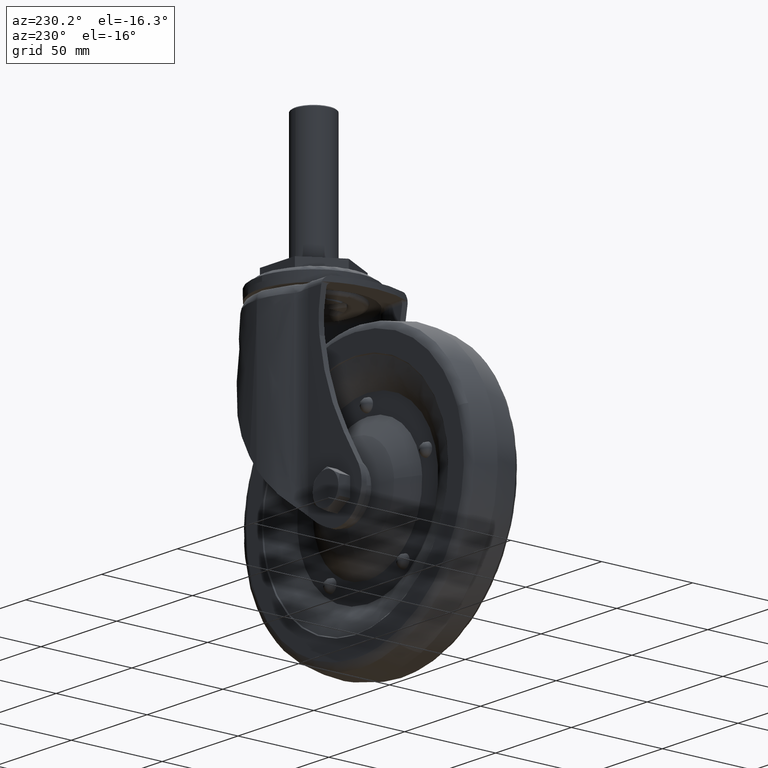
[diagram: clean part render]
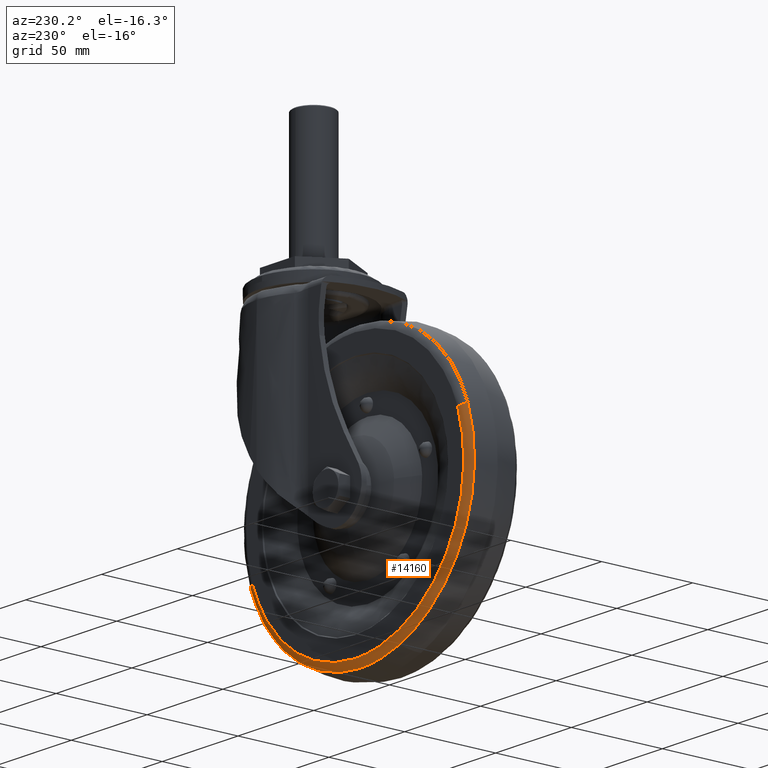
[diagram: same view with one face highlighted and labeled with its STEP entity id]
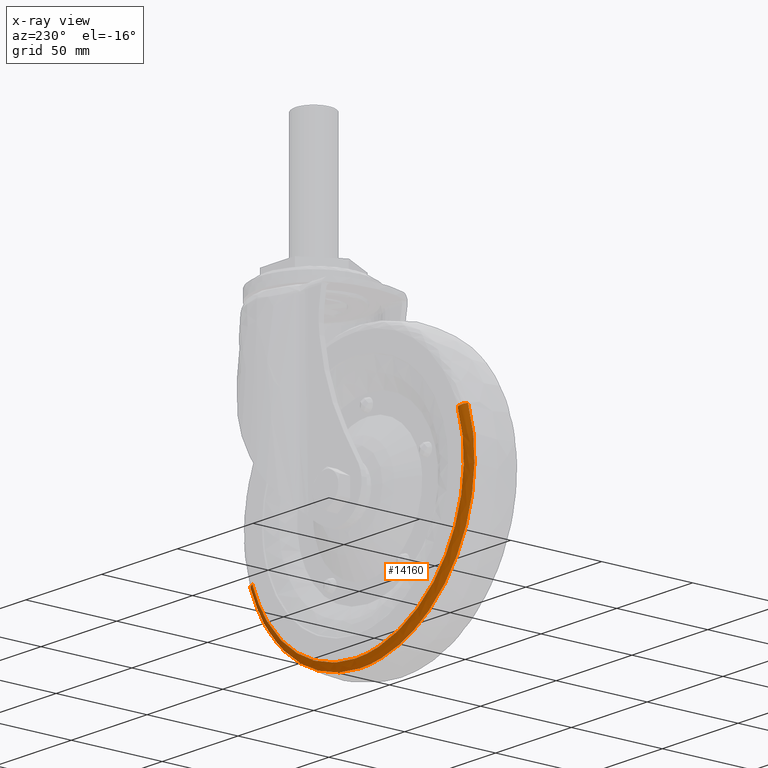
[diagram: x-ray of the same camera — body ghosted, the highlighted face saturated]
A machine part, auxiliary view. The second image highlights one B-rep face of the part: STEP entity #14160.
The next image is the same camera in x-ray: the body ghosted, the highlighted face saturated — about 0% of this face is hidden behind the body in this view.
In plain terms, the highlighted face is a freeform B-spline surface patch.
Its self-contained STEP definition (entity closure, byte-faithful):
#13910=CARTESIAN_POINT('',(-111.747081916940100,14.0,-82.689311420728544));
#13911=VERTEX_POINT('',#13910);
#13912=CARTESIAN_POINT('',(-44.0,14.0,-178.442801406874990));
#13913=VERTEX_POINT('',#13912);
#13914=CARTESIAN_POINT('',(-111.747081916940000,13.999999999999995,-82.689311420728544));
#13915=CARTESIAN_POINT('',(-115.842801529025760,14.000000000000007,-94.293872802856725));
#13916=CARTESIAN_POINT('',(-115.842801526583900,14.0,-106.599999896041500));
#13917=CARTESIAN_POINT('',(-115.842801512328390,13.999999999999998,-178.442801403315230));
#13918=CARTESIAN_POINT('',(-44.0,14.0,-178.442801406874990));
#13926=(BOUNDED_CURVE()B_SPLINE_CURVE(2,(#13914,#13915,#13916,#13917,#13918),.UNSPECIFIED.,.F.,.U.)B_SPLINE_CURVE_WITH_KNOTS((3,2,3),(0.693451214483278,0.750000000000000,1.0),.UNSPECIFIED.)CURVE()GEOMETRIC_REPRESENTATION_ITEM()RATIONAL_B_SPLINE_CURVE((0.897469272747794,0.933748976760062,1.0,0.707106781186548,1.0))REPRESENTATION_ITEM(''));
#13927=EDGE_CURVE('',#13911,#13913,#13926,.T.);
#13944=CARTESIAN_POINT('',(23.747081916940051,14.0,-130.510688388536610));
#13945=VERTEX_POINT('',#13944);
#13961=CARTESIAN_POINT('',(-44.0,14.0,-178.442801406874990));
#13962=CARTESIAN_POINT('',(6.829898304983402,14.0,-178.442801411906400));
#13963=CARTESIAN_POINT('',(23.747081916940044,13.999999999999995,-130.510688388536610));
#13971=(BOUNDED_CURVE()B_SPLINE_CURVE(2,(#13961,#13962,#13963),.UNSPECIFIED.,.F.,.U.)B_SPLINE_CURVE_WITH_KNOTS((3,3),(0.0,0.193451214483278),.UNSPECIFIED.)CURVE()GEOMETRIC_REPRESENTATION_ITEM()RATIONAL_B_SPLINE_CURVE((1.0,0.773357804426485,0.897469272747794))REPRESENTATION_ITEM(''));
#13972=EDGE_CURVE('',#13913,#13945,#13971,.T.);
#14006=CARTESIAN_POINT('',(27.317402419371430,11.290322580617250,-131.770799065772910));
#14007=VERTEX_POINT('',#14006);
#14025=CARTESIAN_POINT('',(23.747081916940044,14.0,-130.510688388536610));
#14026=CARTESIAN_POINT('',(26.446592540692254,13.999999978361005,-131.463454998306450));
#14027=CARTESIAN_POINT('',(27.317402419371433,11.290322580617252,-131.770799065772880));
#14035=(BOUNDED_CURVE()B_SPLINE_CURVE(2,(#14025,#14026,#14027),.UNSPECIFIED.,.F.,.U.)B_SPLINE_CURVE_WITH_KNOTS((3,3),(-1.683115943658848,-0.318910453200903),.UNSPECIFIED.)CURVE()GEOMETRIC_REPRESENTATION_ITEM()RATIONAL_B_SPLINE_CURVE((0.903309569754299,0.734365370454076,0.902808413255006))REPRESENTATION_ITEM(''));
#14036=EDGE_CURVE('',#13945,#14007,#14035,.T.);
#14040=CARTESIAN_POINT('',(-115.317402419371400,11.290322580617250,-81.429200743492288));
#14041=VERTEX_POINT('',#14040);
#14042=CARTESIAN_POINT('',(-111.747081916940000,13.999999999999996,-82.689311420728529));
#14043=CARTESIAN_POINT('',(-114.446592540692250,13.999999978360984,-81.736544810958691));
#14044=CARTESIAN_POINT('',(-115.317402419371480,11.290322580617252,-81.429200743492288));
#14052=(BOUNDED_CURVE()B_SPLINE_CURVE(2,(#14042,#14043,#14044),.UNSPECIFIED.,.F.,.U.)B_SPLINE_CURVE_WITH_KNOTS((3,3),(-1.683115943658840,-0.318910453200903),.UNSPECIFIED.)CURVE()GEOMETRIC_REPRESENTATION_ITEM()RATIONAL_B_SPLINE_CURVE((0.903309569754297,0.734365370454077,0.902808413255006))REPRESENTATION_ITEM(''));
#14053=EDGE_CURVE('',#13911,#14041,#14052,.T.);
#14086=CARTESIAN_POINT('',(-111.530047833672510,13.993373090845894,-82.765911537735263));
#14087=CARTESIAN_POINT('',(-135.364136200569760,13.993373090845891,-150.295959371407720));
#14088=CARTESIAN_POINT('',(-67.834088366897305,13.993373090845894,-174.130047738305050));
#14089=CARTESIAN_POINT('',(-0.304040533224871,13.993373090845891,-197.964136105202390));
#14090=CARTESIAN_POINT('',(23.530047833672452,13.993373090845894,-130.434088271529930));
#14091=CARTESIAN_POINT('',(-114.567506988295590,14.179018312776007,-81.693869206587507));
#14092=CARTESIAN_POINT('',(-139.473637686340650,14.179018312776011,-152.261376194883100));
#14093=CARTESIAN_POINT('',(-68.906130698045061,14.179018312776007,-177.167506892928200));
#14094=CARTESIAN_POINT('',(1.661376290250516,14.179018312776011,-202.073637590973280));
#14095=CARTESIAN_POINT('',(26.567506988295595,14.179018312776007,-131.506130602677620));
#14096=CARTESIAN_POINT('',(-115.381531888333060,11.070205380750693,-81.406566857148434));
#14097=CARTESIAN_POINT('',(-140.574964935817180,11.070205380750689,-152.788098745481450));
#14098=CARTESIAN_POINT('',(-69.193433047484163,11.070205380750693,-177.981531792965570));
#14099=CARTESIAN_POINT('',(2.188098840848895,11.070205380750689,-203.174964840449830));
#14100=CARTESIAN_POINT('',(27.381531888333058,11.070205380750693,-131.793432952116720));
#14108=(BOUNDED_SURFACE()B_SPLINE_SURFACE(2,2,((#14086,#14091,#14096),(#14087,#14092,#14097),(#14088,#14093,#14098),(#14089,#14094,#14099),(#14090,#14095,#14100)),.UNSPECIFIED.,.F.,.F.,.U.)B_SPLINE_SURFACE_WITH_KNOTS((3,2,3),(3,3),(0.0,125.418856226885000,250.837712453770110),(0.0,5.648613346584044),.UNSPECIFIED.)GEOMETRIC_REPRESENTATION_ITEM()RATIONAL_B_SPLINE_SURFACE(((0.921028881759320,0.716671092863514,0.920477656439962),(0.651265767960678,0.506762989644165,0.650875992799399),(0.921028881759320,0.716671092863514,0.920477656439962),(0.651265767960678,0.506762989644165,0.650875992799399),(0.921028881759320,0.716671092863514,0.920477656439962)))REPRESENTATION_ITEM('')SURFACE());
#14109=CARTESIAN_POINT('',(-44.0,11.290322580645070,-182.228969342648210));
#14110=VERTEX_POINT('',#14109);
#14111=CARTESIAN_POINT('',(-44.0,11.290322580645070,-182.228969342648210));
#14112=CARTESIAN_POINT('',(9.508670931787954,11.290322580640822,-182.228969342647670));
#14113=CARTESIAN_POINT('',(27.317402419371419,11.290322580617257,-131.770799065772910));
#14121=(BOUNDED_CURVE()B_SPLINE_CURVE(2,(#14111,#14112,#14113),.UNSPECIFIED.,.F.,.U.)B_SPLINE_CURVE_WITH_KNOTS((3,3),(0.0,0.193451214484607),.UNSPECIFIED.)CURVE()GEOMETRIC_REPRESENTATION_ITEM()RATIONAL_B_SPLINE_CURVE((1.0,0.773357804424928,0.897469272749499))REPRESENTATION_ITEM(''));
#14122=EDGE_CURVE('',#14110,#14007,#14121,.T.);
#14123=ORIENTED_EDGE('',*,*,#14122,.F.);
#14124=CARTESIAN_POINT('',(-70.064989103873245,11.290322580578801,-177.595474135562910));
#14125=VERTEX_POINT('',#14124);
#14126=CARTESIAN_POINT('',(-70.064989103873245,11.290322580578799,-177.595474135562800));
#14127=CARTESIAN_POINT('',(-57.444335848871901,11.290322580611928,-182.228969342658840));
#14128=CARTESIAN_POINT('',(-44.0,11.290322580645070,-182.228969342648210));
#14136=(BOUNDED_CURVE()B_SPLINE_CURVE(2,(#14126,#14127,#14128),.UNSPECIFIED.,.F.,.U.)B_SPLINE_CURVE_WITH_KNOTS((3,3),(0.941460350202644,1.0),.UNSPECIFIED.)CURVE()GEOMETRIC_REPRESENTATION_ITEM()RATIONAL_B_SPLINE_CURVE((0.894951884913475,0.931416534170560,1.0))REPRESENTATION_ITEM(''));
#14137=EDGE_CURVE('',#14125,#14110,#14136,.T.);
#14138=ORIENTED_EDGE('',*,*,#14137,.F.);
#14139=CARTESIAN_POINT('',(-115.317402419371400,11.290322580617246,-81.429200743492288));
#14140=CARTESIAN_POINT('',(-119.628969438023600,11.290322580611578,-93.645330956867724));
#14141=CARTESIAN_POINT('',(-119.628969438023700,11.290322580605920,-106.599999904643790));
#14142=CARTESIAN_POINT('',(-119.628969438024470,11.290322580582858,-159.398756368002490));
#14143=CARTESIAN_POINT('',(-70.064989103873245,11.290322580578799,-177.595474135562800));
#14151=(BOUNDED_CURVE()B_SPLINE_CURVE(2,(#14139,#14140,#14141,#14142,#14143),.UNSPECIFIED.,.F.,.U.)B_SPLINE_CURVE_WITH_KNOTS((3,2,3),(0.693451214484607,0.750000000000000,0.941460350202644),.UNSPECIFIED.)CURVE()GEOMETRIC_REPRESENTATION_ITEM()RATIONAL_B_SPLINE_CURVE((0.897469272749499,0.933748976761620,1.0,0.775690247015987,0.894951884913475))REPRESENTATION_ITEM(''));
#14152=EDGE_CURVE('',#14041,#14125,#14151,.T.);
#14153=ORIENTED_EDGE('',*,*,#14152,.F.);
#14154=ORIENTED_EDGE('',*,*,#14053,.F.);
#14155=ORIENTED_EDGE('',*,*,#13927,.T.);
#14156=ORIENTED_EDGE('',*,*,#13972,.T.);
#14157=ORIENTED_EDGE('',*,*,#14036,.T.);
#14158=EDGE_LOOP('',(#14123,#14138,#14153,#14154,#14155,#14156,#14157));
#14159=FACE_OUTER_BOUND('',#14158,.T.);
#14160=ADVANCED_FACE('',(#14159),#14108,.T.);